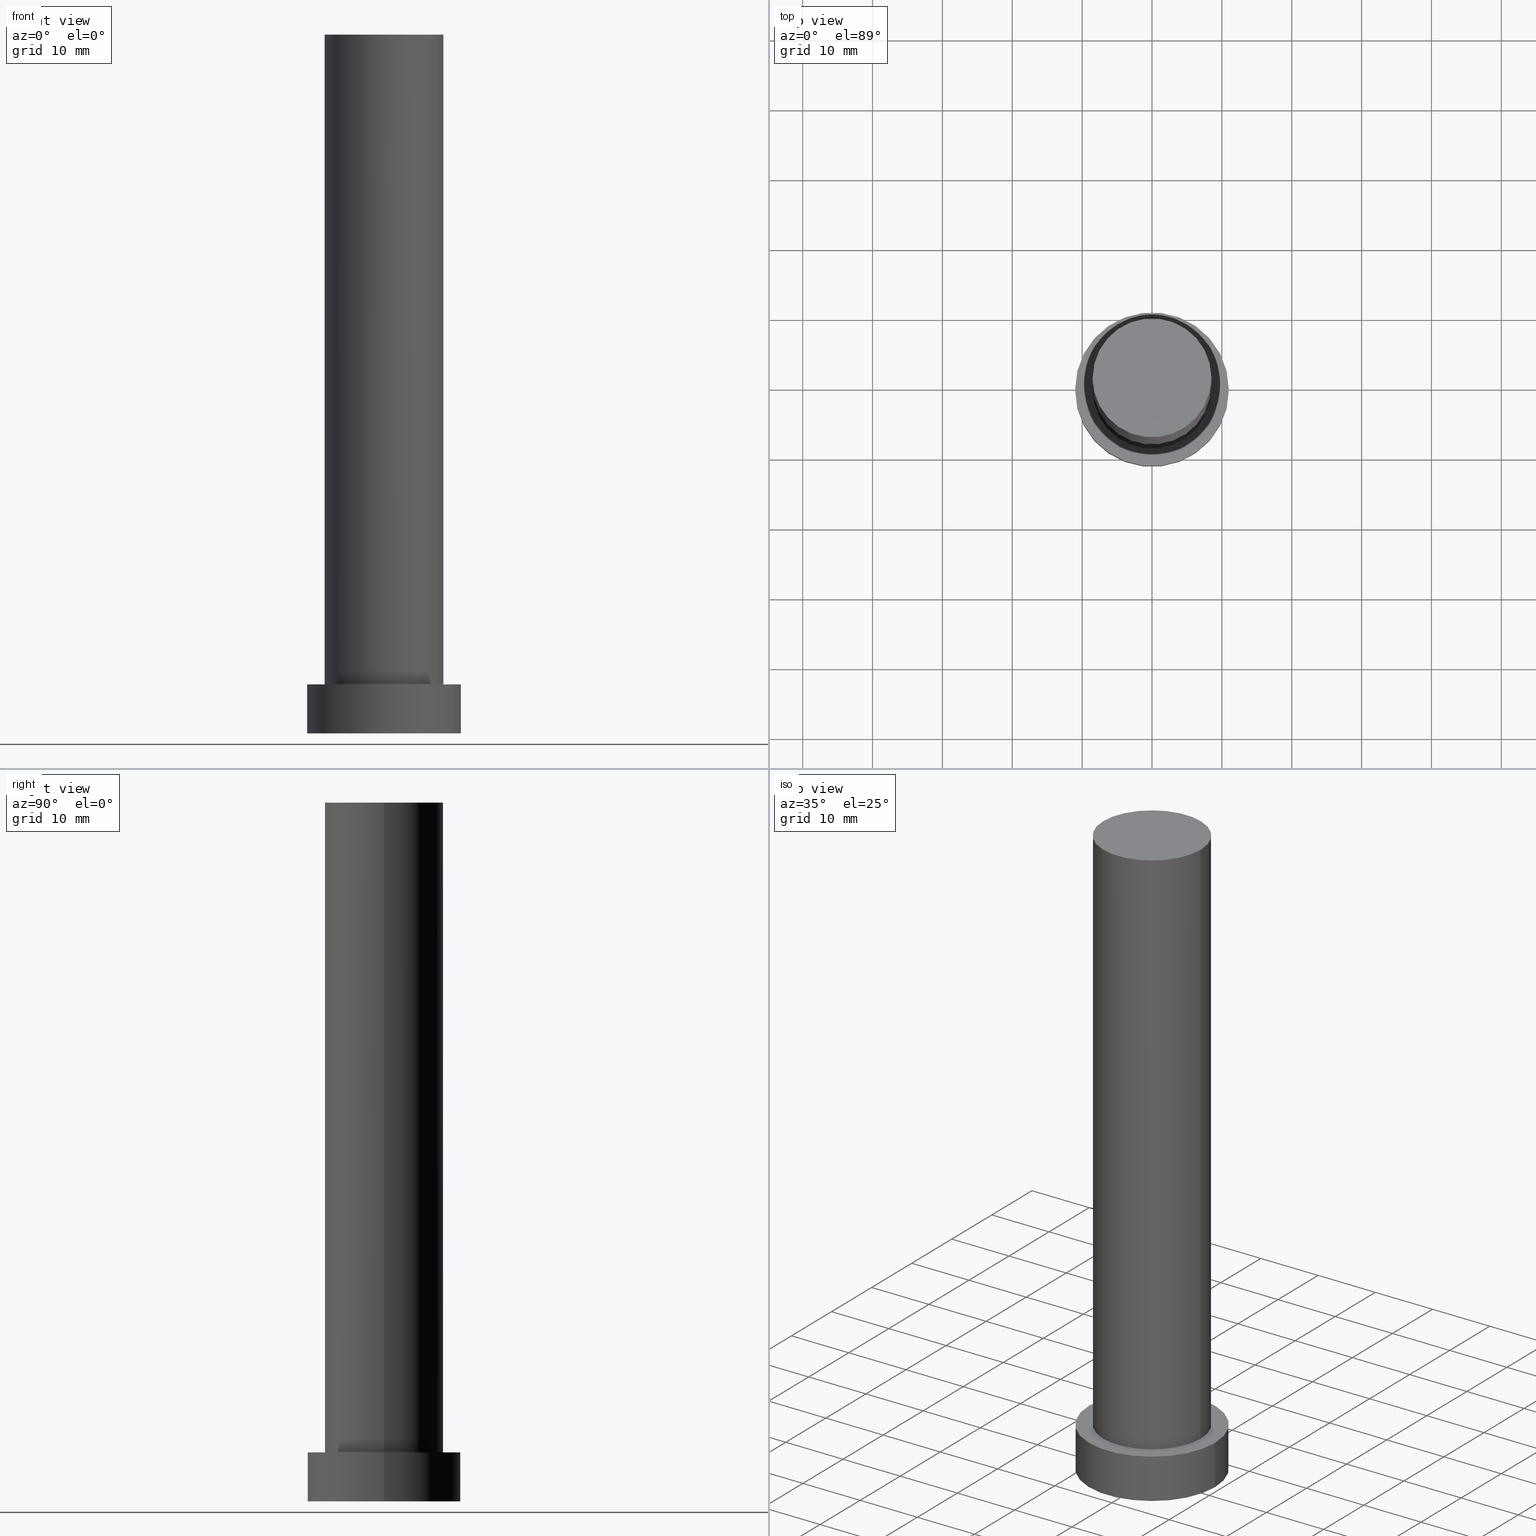
[diagram: canonical four-view strip — front | top / right | iso, engineering-drawing reading convention]
A machine part, canonical four-view strip (front | top / right | iso — engineering-drawing reading convention). The complete STEP part file that produces these views, byte-faithful:
ISO-10303-21;
HEADER;
FILE_DESCRIPTION (( 'STEP AP203' ),
    '1' );
FILE_NAME ('7f58.STEP',
    '2023-02-13T08:47:41',
    ( '' ),
    ( '' ),
    'SwSTEP 2.0',
    'SolidWorks 2019',
    '' );
FILE_SCHEMA (( 'CONFIG_CONTROL_DESIGN' ));
ENDSEC;

DATA;
#1 = DATE_AND_TIME ( #3, #213 ) ;
#2 = VERTEX_POINT ( 'NONE', #150 ) ;
#3 = CALENDAR_DATE ( 2023, 13, 2 ) ;
#4 = CARTESIAN_POINT ( 'NONE',  ( 0.000000000000000000, 0.000000000000000000, 100.0000000000000000 ) ) ;
#5 = EDGE_CURVE ( 'NONE', #6, #231, #13, .T. ) ;
#6 = VERTEX_POINT ( 'NONE', #211 ) ;
#7 = CC_DESIGN_PERSON_AND_ORGANIZATION_ASSIGNMENT ( #98, #220, ( #14 ) ) ;
#8 = CARTESIAN_POINT ( 'NONE',  ( 0.000000000000000000, 0.000000000000000000, 7.000000000000000000 ) ) ;
#9 = DIRECTION ( 'NONE',  ( -1.000000000000000000, 0.000000000000000000, 0.000000000000000000 ) ) ;
#10 = ORIENTED_EDGE ( 'NONE', *, *, #53, .F. ) ;
#11 = ORIENTED_EDGE ( 'NONE', *, *, #123, .T. ) ;
#12 = ADVANCED_FACE ( 'NONE', ( #31, #114 ), #15, .T. ) ;
#13 = CIRCLE ( 'NONE', #138, 11.00000000000000000 ) ;
#14 = PRODUCT_DEFINITION_FORMATION_WITH_SPECIFIED_SOURCE ( 'LIBOVOLN�', '', #29, .NOT_KNOWN. ) ;
#15 = PLANE ( 'NONE',  #183 ) ;
#16 = CARTESIAN_POINT ( 'NONE',  ( 0.000000000000000000, 0.000000000000000000, 100.0000000000000000 ) ) ;
#17 = PERSON_AND_ORGANIZATION ( #60, #49 ) ;
#18 = CARTESIAN_POINT ( 'NONE',  ( 0.000000000000000000, 0.000000000000000000, 100.0000000000000000 ) ) ;
#19 = APPLICATION_CONTEXT ( 'configuration controlled 3d designs of mechanical parts and assemblies' ) ;
#20 = CIRCLE ( 'NONE', #78, 11.00000000000000000 ) ;
#21 = DATE_AND_TIME ( #195, #63 ) ;
#22 = PERSON_AND_ORGANIZATION ( #60, #49 ) ;
#23 = CLOSED_SHELL ( 'NONE', ( #117, #239, #77, #12, #177, #58, #103 ) ) ;
#24 = DIRECTION ( 'NONE',  ( 1.000000000000000000, 0.000000000000000000, 0.000000000000000000 ) ) ;
#25 = CARTESIAN_POINT ( 'NONE',  ( 0.000000000000000000, 0.000000000000000000, 7.000000000000000000 ) ) ;
#26 = DIRECTION ( 'NONE',  ( 1.000000000000000000, 0.000000000000000000, 0.000000000000000000 ) ) ;
#27 = EDGE_CURVE ( 'NONE', #231, #2, #243, .T. ) ;
#28 = DIRECTION ( 'NONE',  ( 1.000000000000000000, 0.000000000000000000, -0.000000000000000000 ) ) ;
#29 = PRODUCT ( '7f58', '7f58', '', ( #157 ) ) ;
#30 = DIRECTION ( 'NONE',  ( 1.000000000000000000, 0.000000000000000000, 0.000000000000000000 ) ) ;
#31 = FACE_BOUND ( 'NONE', #89, .T. ) ;
#32 = DIRECTION ( 'NONE',  ( -0.000000000000000000, -0.000000000000000000, -1.000000000000000000 ) ) ;
#33 = APPROVAL_PERSON_ORGANIZATION ( #154, #227, #214 ) ;
#34 = CC_DESIGN_PERSON_AND_ORGANIZATION_ASSIGNMENT ( #179, #141, ( #14 ) ) ;
#35 = DIRECTION ( 'NONE',  ( -0.000000000000000000, -0.000000000000000000, -1.000000000000000000 ) ) ;
#36 = COORDINATED_UNIVERSAL_TIME_OFFSET ( 1, 0, .AHEAD. ) ;
#37 = AXIS2_PLACEMENT_3D ( 'NONE', #230, #168, #9 ) ;
#38 = SECURITY_CLASSIFICATION_LEVEL ( 'unclassified' ) ;
#39 = SECURITY_CLASSIFICATION ( '', '', #38 ) ;
#40 = CIRCLE ( 'NONE', #80, 11.00000000000000000 ) ;
#41 = PERSON_AND_ORGANIZATION_ROLE ( 'classification_officer' ) ;
#42 = CC_DESIGN_DATE_AND_TIME_ASSIGNMENT ( #136, #122, ( #43 ) ) ;
#43 = PRODUCT_DEFINITION ( 'NEZN�M�', '', #14, #109 ) ;
#44 = ORIENTED_EDGE ( 'NONE', *, *, #45, .T. ) ;
#45 = EDGE_CURVE ( 'NONE', #181, #132, #252, .T. ) ;
#46 = DIRECTION ( 'NONE',  ( 1.000000000000000000, 0.000000000000000000, 0.000000000000000000 ) ) ;
#47 = ORIENTED_EDGE ( 'NONE', *, *, #82, .F. ) ;
#48 = ORIENTED_EDGE ( 'NONE', *, *, #82, .T. ) ;
#49 = ORGANIZATION ( 'NEUR�EN�', 'NEUR�EN�', '' ) ;
#50 = DIRECTION ( 'NONE',  ( -1.000000000000000000, 0.000000000000000000, 0.000000000000000000 ) ) ;
#51 = CARTESIAN_POINT ( 'NONE',  ( 0.000000000000000000, 0.000000000000000000, 7.000000000000000000 ) ) ;
#52 = CARTESIAN_POINT ( 'NONE',  ( -8.500000000000000000, 0.000000000000000000, 100.0000000000000000 ) ) ;
#53 = EDGE_CURVE ( 'NONE', #6, #128, #235, .T. ) ;
#54 = CALENDAR_DATE ( 2023, 13, 2 ) ;
#55 = CARTESIAN_POINT ( 'NONE',  ( 0.000000000000000000, 0.000000000000000000, 0.000000000000000000 ) ) ;
#56 = EDGE_CURVE ( 'NONE', #2, #128, #40, .T. ) ;
#57 =( LENGTH_UNIT ( ) NAMED_UNIT ( * ) SI_UNIT ( .MILLI., .METRE. ) );
#58 = ADVANCED_FACE ( 'NONE', ( #173 ), #76, .T. ) ;
#59 = APPROVAL_PERSON_ORGANIZATION ( #237, #71, #191 ) ;
#60 = PERSON ( 'NEUR�EN�', 'NEUR�EN�', 'NEUR�EN�', ('NEUR�EN�'), ('NEUR�EN�'), ('NEUR�EN�') ) ;
#61 = ADVANCED_BREP_SHAPE_REPRESENTATION ( '7f58', ( #143, #199 ), #188 ) ;
#62 = DIRECTION ( 'NONE',  ( 1.000000000000000000, 0.000000000000000000, 0.000000000000000000 ) ) ;
#63 = LOCAL_TIME ( 9, 47, 41.00000000000000000, #119 ) ;
#64 = DIRECTION ( 'NONE',  ( 1.000000000000000000, 0.000000000000000000, -0.000000000000000000 ) ) ;
#65 = CARTESIAN_POINT ( 'NONE',  ( 0.000000000000000000, 0.000000000000000000, 7.000000000000000000 ) ) ;
#66 = DIRECTION ( 'NONE',  ( -0.000000000000000000, -0.000000000000000000, -1.000000000000000000 ) ) ;
#67 = EDGE_LOOP ( 'NONE', ( #147, #87, #206, #48 ) ) ;
#68 = DIRECTION ( 'NONE',  ( -0.000000000000000000, -0.000000000000000000, -1.000000000000000000 ) ) ;
#69 = EDGE_LOOP ( 'NONE', ( #224, #192, #129, #244 ) ) ;
#70 = AXIS2_PLACEMENT_3D ( 'NONE', #225, #245, #46 ) ;
#71 = APPROVAL ( #197, 'NEUR�EN�' ) ;
#72 = AXIS2_PLACEMENT_3D ( 'NONE', #175, #32, #95 ) ;
#73 = EDGE_LOOP ( 'NONE', ( #229, #11 ) ) ;
#74 = APPROVAL_STATUS ( 'not_yet_approved' ) ;
#75 = DATE_AND_TIME ( #156, #184 ) ;
#76 = CYLINDRICAL_SURFACE ( 'NONE', #193, 8.500000000000000000 ) ;
#77 = ADVANCED_FACE ( 'NONE', ( #170 ), #146, .T. ) ;
#78 = AXIS2_PLACEMENT_3D ( 'NONE', #88, #203, #24 ) ;
#79 = CARTESIAN_POINT ( 'NONE',  ( 8.500000000000000000, 1.040949779275249943E-15, 100.0000000000000000 ) ) ;
#80 = AXIS2_PLACEMENT_3D ( 'NONE', #140, #198, #94 ) ;
#81 = DATE_TIME_ROLE ( 'classification_date' ) ;
#82 = EDGE_CURVE ( 'NONE', #128, #2, #222, .T. ) ;
#83 = DIRECTION ( 'NONE',  ( -1.000000000000000000, 0.000000000000000000, 0.000000000000000000 ) ) ;
#84 = PLANE ( 'NONE',  #218 ) ;
#85 = EDGE_LOOP ( 'NONE', ( #171, #44, #249, #226 ) ) ;
#86 = AXIS2_PLACEMENT_3D ( 'NONE', #8, #68, #50 ) ;
#87 = ORIENTED_EDGE ( 'NONE', *, *, #5, .F. ) ;
#88 = CARTESIAN_POINT ( 'NONE',  ( 0.000000000000000000, 0.000000000000000000, 7.000000000000000000 ) ) ;
#89 = EDGE_LOOP ( 'NONE', ( #111, #210 ) ) ;
#90 = CC_DESIGN_PERSON_AND_ORGANIZATION_ASSIGNMENT ( #17, #93, ( #29 ) ) ;
#91 = AXIS2_PLACEMENT_3D ( 'NONE', #4, #204, #62 ) ;
#92 = DIRECTION ( 'NONE',  ( 1.000000000000000000, 0.000000000000000000, 0.000000000000000000 ) ) ;
#93 = PERSON_AND_ORGANIZATION_ROLE ( 'design_owner' ) ;
#94 = DIRECTION ( 'NONE',  ( 1.000000000000000000, 0.000000000000000000, 0.000000000000000000 ) ) ;
#95 = DIRECTION ( 'NONE',  ( -1.000000000000000000, 0.000000000000000000, 0.000000000000000000 ) ) ;
#96 = CARTESIAN_POINT ( 'NONE',  ( 11.00000000000000000, 1.347111479062088405E-15, 7.000000000000000000 ) ) ;
#97 = APPROVAL_DATE_TIME ( #75, #71 ) ;
#98 = PERSON_AND_ORGANIZATION ( #60, #49 ) ;
#99 = CIRCLE ( 'NONE', #116, 8.500000000000000000 ) ;
#100 = CC_DESIGN_APPROVAL ( #131, ( #39 ) ) ;
#101 = PERSON_AND_ORGANIZATION ( #60, #49 ) ;
#102 = APPROVAL_ROLE ( '' ) ;
#103 = ADVANCED_FACE ( 'NONE', ( #189 ), #207, .T. ) ;
#104 = CALENDAR_DATE ( 2023, 13, 2 ) ;
#105 = LOCAL_TIME ( 9, 47, 41.00000000000000000, #36 ) ;
#106 = CARTESIAN_POINT ( 'NONE',  ( -11.00000000000000000, 0.000000000000000000, 0.000000000000000000 ) ) ;
#107 = DIRECTION ( 'NONE',  ( 1.000000000000000000, 0.000000000000000000, 0.000000000000000000 ) ) ;
#108 = DIRECTION ( 'NONE',  ( 1.000000000000000000, 0.000000000000000000, -0.000000000000000000 ) ) ;
#109 = DESIGN_CONTEXT ( 'detailed design', #161, 'design' ) ;
#110 = CC_DESIGN_DATE_AND_TIME_ASSIGNMENT ( #1, #81, ( #39 ) ) ;
#111 = ORIENTED_EDGE ( 'NONE', *, *, #159, .F. ) ;
#112 = FACE_OUTER_BOUND ( 'NONE', #85, .T. ) ;
#113 = ORIENTED_EDGE ( 'NONE', *, *, #56, .F. ) ;
#114 = FACE_OUTER_BOUND ( 'NONE', #73, .T. ) ;
#115 = EDGE_CURVE ( 'NONE', #132, #241, #99, .T. ) ;
#116 = AXIS2_PLACEMENT_3D ( 'NONE', #223, #162, #149 ) ;
#117 = ADVANCED_FACE ( 'NONE', ( #112 ), #247, .T. ) ;
#118 = FACE_OUTER_BOUND ( 'NONE', #202, .T. ) ;
#119 = COORDINATED_UNIVERSAL_TIME_OFFSET ( 1, 0, .AHEAD. ) ;
#120 = DIRECTION ( 'NONE',  ( -0.000000000000000000, -0.000000000000000000, -1.000000000000000000 ) ) ;
#121 = AXIS2_PLACEMENT_3D ( 'NONE', #25, #126, #107 ) ;
#122 = DATE_TIME_ROLE ( 'creation_date' ) ;
#123 = EDGE_CURVE ( 'NONE', #231, #6, #20, .T. ) ;
#124 = CIRCLE ( 'NONE', #91, 8.500000000000000000 ) ;
#125 = PRODUCT_DEFINITION_SHAPE ( 'NONE', 'NONE',  #43 ) ;
#126 = DIRECTION ( 'NONE',  ( 0.000000000000000000, 0.000000000000000000, 1.000000000000000000 ) ) ;
#127 = DIRECTION ( 'NONE',  ( 0.000000000000000000, 0.000000000000000000, 1.000000000000000000 ) ) ;
#128 = VERTEX_POINT ( 'NONE', #106 ) ;
#129 = ORIENTED_EDGE ( 'NONE', *, *, #200, .T. ) ;
#130 = VECTOR ( 'NONE', #196, 1000.000000000000000 ) ;
#131 = APPROVAL ( #160, 'NEUR�EN�' ) ;
#132 = VERTEX_POINT ( 'NONE', #185 ) ;
#133 = DIRECTION ( 'NONE',  ( 0.000000000000000000, 0.000000000000000000, 1.000000000000000000 ) ) ;
#134 =( NAMED_UNIT ( * ) PLANE_ANGLE_UNIT ( ) SI_UNIT ( $, .RADIAN. ) );
#135 = CARTESIAN_POINT ( 'NONE',  ( -11.00000000000000000, 0.000000000000000000, 7.000000000000000000 ) ) ;
#136 = DATE_AND_TIME ( #54, #105 ) ;
#137 = APPLICATION_PROTOCOL_DEFINITION ( 'international standard', 'config_control_design', 1994, #19 ) ;
#138 = AXIS2_PLACEMENT_3D ( 'NONE', #51, #133, #26 ) ;
#139 = APPROVAL_PERSON_ORGANIZATION ( #22, #131, #102 ) ;
#140 = CARTESIAN_POINT ( 'NONE',  ( 0.000000000000000000, 0.000000000000000000, 0.000000000000000000 ) ) ;
#141 = PERSON_AND_ORGANIZATION_ROLE ( 'creator' ) ;
#142 = APPROVAL_DATE_TIME ( #21, #227 ) ;
#143 = MANIFOLD_SOLID_BREP ( 'P�idat vysunut�m3', #23 ) ;
#144 = EDGE_LOOP ( 'NONE', ( #187, #190 ) ) ;
#145 = CARTESIAN_POINT ( 'NONE',  ( 11.00000000000000000, 1.347111479062088405E-15, 7.000000000000000000 ) ) ;
#146 = CYLINDRICAL_SURFACE ( 'NONE', #86, 11.00000000000000000 ) ;
#147 = ORIENTED_EDGE ( 'NONE', *, *, #27, .F. ) ;
#148 = VECTOR ( 'NONE', #176, 1000.000000000000000 ) ;
#149 = DIRECTION ( 'NONE',  ( 1.000000000000000000, 0.000000000000000000, 0.000000000000000000 ) ) ;
#150 = CARTESIAN_POINT ( 'NONE',  ( 11.00000000000000000, 1.347111479062088405E-15, 0.000000000000000000 ) ) ;
#151 = EDGE_CURVE ( 'NONE', #181, #205, #124, .T. ) ;
#152 = CC_DESIGN_PERSON_AND_ORGANIZATION_ASSIGNMENT ( #216, #250, ( #43 ) ) ;
#153 = AXIS2_PLACEMENT_3D ( 'NONE', #16, #234, #30 ) ;
#154 = PERSON_AND_ORGANIZATION ( #60, #49 ) ;
#155 = CC_DESIGN_PERSON_AND_ORGANIZATION_ASSIGNMENT ( #101, #41, ( #39 ) ) ;
#156 = CALENDAR_DATE ( 2023, 13, 2 ) ;
#157 = MECHANICAL_CONTEXT ( 'NONE', #19, 'mechanical' ) ;
#158 = CC_DESIGN_SECURITY_CLASSIFICATION ( #39, ( #14 ) ) ;
#159 = EDGE_CURVE ( 'NONE', #241, #132, #166, .T. ) ;
#160 = APPROVAL_STATUS ( 'not_yet_approved' ) ;
#161 = APPLICATION_CONTEXT ( 'configuration controlled 3d designs of mechanical parts and assemblies' ) ;
#162 = DIRECTION ( 'NONE',  ( 0.000000000000000000, 0.000000000000000000, 1.000000000000000000 ) ) ;
#163 = ORIENTED_EDGE ( 'NONE', *, *, #27, .T. ) ;
#164 = CARTESIAN_POINT ( 'NONE',  ( 0.000000000000000000, 0.000000000000000000, 0.000000000000000000 ) ) ;
#165 = VECTOR ( 'NONE', #120, 1000.000000000000000 ) ;
#166 = CIRCLE ( 'NONE', #121, 8.500000000000000000 ) ;
#167 = CARTESIAN_POINT ( 'NONE',  ( 0.000000000000000000, 0.000000000000000000, 100.0000000000000000 ) ) ;
#168 = DIRECTION ( 'NONE',  ( -0.000000000000000000, -0.000000000000000000, -1.000000000000000000 ) ) ;
#169 = EDGE_LOOP ( 'NONE', ( #47, #113 ) ) ;
#170 = FACE_OUTER_BOUND ( 'NONE', #67, .T. ) ;
#171 = ORIENTED_EDGE ( 'NONE', *, *, #151, .F. ) ;
#172 = APPLICATION_PROTOCOL_DEFINITION ( 'international standard', 'config_control_design', 1994, #161 ) ;
#173 = FACE_OUTER_BOUND ( 'NONE', #69, .T. ) ;
#174 = DIRECTION ( 'NONE',  ( 0.000000000000000000, 0.000000000000000000, 1.000000000000000000 ) ) ;
#175 = CARTESIAN_POINT ( 'NONE',  ( 0.000000000000000000, 0.000000000000000000, 7.000000000000000000 ) ) ;
#176 = DIRECTION ( 'NONE',  ( -0.000000000000000000, -0.000000000000000000, -1.000000000000000000 ) ) ;
#177 = ADVANCED_FACE ( 'NONE', ( #186 ), #84, .F. ) ;
#178 = CC_DESIGN_APPROVAL ( #71, ( #43 ) ) ;
#179 = PERSON_AND_ORGANIZATION ( #60, #49 ) ;
#180 = COORDINATED_UNIVERSAL_TIME_OFFSET ( 1, 0, .AHEAD. ) ;
#181 = VERTEX_POINT ( 'NONE', #79 ) ;
#182 = APPROVAL_DATE_TIME ( #201, #131 ) ;
#183 = AXIS2_PLACEMENT_3D ( 'NONE', #65, #127, #108 ) ;
#184 = LOCAL_TIME ( 9, 47, 41.00000000000000000, #212 ) ;
#185 = CARTESIAN_POINT ( 'NONE',  ( 8.500000000000000000, 1.040949779275249943E-15, 7.000000000000000000 ) ) ;
#186 = FACE_OUTER_BOUND ( 'NONE', #169, .T. ) ;
#187 = ORIENTED_EDGE ( 'NONE', *, *, #251, .T. ) ;
#188 =( GEOMETRIC_REPRESENTATION_CONTEXT ( 3 ) GLOBAL_UNCERTAINTY_ASSIGNED_CONTEXT ( ( #253 ) ) GLOBAL_UNIT_ASSIGNED_CONTEXT ( ( #57, #134, #233 ) ) REPRESENTATION_CONTEXT ( 'NONE', 'WORKASPACE' ) );
#189 = FACE_OUTER_BOUND ( 'NONE', #144, .T. ) ;
#190 = ORIENTED_EDGE ( 'NONE', *, *, #151, .T. ) ;
#191 = APPROVAL_ROLE ( '' ) ;
#192 = ORIENTED_EDGE ( 'NONE', *, *, #251, .F. ) ;
#193 = AXIS2_PLACEMENT_3D ( 'NONE', #18, #66, #83 ) ;
#194 = CYLINDRICAL_SURFACE ( 'NONE', #72, 11.00000000000000000 ) ;
#195 = CALENDAR_DATE ( 2023, 13, 2 ) ;
#196 = DIRECTION ( 'NONE',  ( -0.000000000000000000, -0.000000000000000000, -1.000000000000000000 ) ) ;
#197 = APPROVAL_STATUS ( 'not_yet_approved' ) ;
#198 = DIRECTION ( 'NONE',  ( 0.000000000000000000, 0.000000000000000000, 1.000000000000000000 ) ) ;
#199 = AXIS2_PLACEMENT_3D ( 'NONE', #55, #174, #92 ) ;
#200 = EDGE_CURVE ( 'NONE', #205, #241, #215, .T. ) ;
#201 = DATE_AND_TIME ( #104, #248 ) ;
#202 = EDGE_LOOP ( 'NONE', ( #246, #163, #208, #10 ) ) ;
#203 = DIRECTION ( 'NONE',  ( 0.000000000000000000, 0.000000000000000000, 1.000000000000000000 ) ) ;
#204 = DIRECTION ( 'NONE',  ( 0.000000000000000000, 0.000000000000000000, 1.000000000000000000 ) ) ;
#205 = VERTEX_POINT ( 'NONE', #52 ) ;
#206 = ORIENTED_EDGE ( 'NONE', *, *, #53, .T. ) ;
#207 = PLANE ( 'NONE',  #217 ) ;
#208 = ORIENTED_EDGE ( 'NONE', *, *, #56, .T. ) ;
#209 = DIRECTION ( 'NONE',  ( 0.000000000000000000, 0.000000000000000000, 1.000000000000000000 ) ) ;
#210 = ORIENTED_EDGE ( 'NONE', *, *, #115, .F. ) ;
#211 = CARTESIAN_POINT ( 'NONE',  ( -11.00000000000000000, 0.000000000000000000, 7.000000000000000000 ) ) ;
#212 = COORDINATED_UNIVERSAL_TIME_OFFSET ( 1, 0, .AHEAD. ) ;
#213 = LOCAL_TIME ( 9, 47, 41.00000000000000000, #240 ) ;
#214 = APPROVAL_ROLE ( '' ) ;
#215 = LINE ( 'NONE', #254, #228 ) ;
#216 = PERSON_AND_ORGANIZATION ( #60, #49 ) ;
#217 = AXIS2_PLACEMENT_3D ( 'NONE', #167, #209, #28 ) ;
#218 = AXIS2_PLACEMENT_3D ( 'NONE', #164, #242, #64 ) ;
#219 = SHAPE_DEFINITION_REPRESENTATION ( #125, #61 ) ;
#220 = PERSON_AND_ORGANIZATION_ROLE ( 'design_supplier' ) ;
#221 = PRODUCT_RELATED_PRODUCT_CATEGORY ( 'detail', '', ( #29 ) ) ;
#222 = CIRCLE ( 'NONE', #70, 11.00000000000000000 ) ;
#223 = CARTESIAN_POINT ( 'NONE',  ( 0.000000000000000000, 0.000000000000000000, 7.000000000000000000 ) ) ;
#224 = ORIENTED_EDGE ( 'NONE', *, *, #45, .F. ) ;
#225 = CARTESIAN_POINT ( 'NONE',  ( 0.000000000000000000, 0.000000000000000000, 0.000000000000000000 ) ) ;
#226 = ORIENTED_EDGE ( 'NONE', *, *, #200, .F. ) ;
#227 = APPROVAL ( #74, 'NEUR�EN�' ) ;
#228 = VECTOR ( 'NONE', #35, 1000.000000000000000 ) ;
#229 = ORIENTED_EDGE ( 'NONE', *, *, #5, .T. ) ;
#230 = CARTESIAN_POINT ( 'NONE',  ( 0.000000000000000000, 0.000000000000000000, 100.0000000000000000 ) ) ;
#231 = VERTEX_POINT ( 'NONE', #96 ) ;
#232 = CARTESIAN_POINT ( 'NONE',  ( 8.500000000000000000, 1.040949779275249943E-15, 100.0000000000000000 ) ) ;
#233 =( NAMED_UNIT ( * ) SI_UNIT ( $, .STERADIAN. ) SOLID_ANGLE_UNIT ( ) );
#234 = DIRECTION ( 'NONE',  ( 0.000000000000000000, 0.000000000000000000, 1.000000000000000000 ) ) ;
#235 = LINE ( 'NONE', #135, #148 ) ;
#236 = CARTESIAN_POINT ( 'NONE',  ( -8.500000000000000000, 0.000000000000000000, 7.000000000000000000 ) ) ;
#237 = PERSON_AND_ORGANIZATION ( #60, #49 ) ;
#238 = CC_DESIGN_APPROVAL ( #227, ( #14 ) ) ;
#239 = ADVANCED_FACE ( 'NONE', ( #118 ), #194, .T. ) ;
#240 = COORDINATED_UNIVERSAL_TIME_OFFSET ( 1, 0, .AHEAD. ) ;
#241 = VERTEX_POINT ( 'NONE', #236 ) ;
#242 = DIRECTION ( 'NONE',  ( 0.000000000000000000, 0.000000000000000000, 1.000000000000000000 ) ) ;
#243 = LINE ( 'NONE', #145, #165 ) ;
#244 = ORIENTED_EDGE ( 'NONE', *, *, #159, .T. ) ;
#245 = DIRECTION ( 'NONE',  ( 0.000000000000000000, 0.000000000000000000, 1.000000000000000000 ) ) ;
#246 = ORIENTED_EDGE ( 'NONE', *, *, #123, .F. ) ;
#247 = CYLINDRICAL_SURFACE ( 'NONE', #37, 8.500000000000000000 ) ;
#248 = LOCAL_TIME ( 9, 47, 41.00000000000000000, #180 ) ;
#249 = ORIENTED_EDGE ( 'NONE', *, *, #115, .T. ) ;
#250 = PERSON_AND_ORGANIZATION_ROLE ( 'creator' ) ;
#251 = EDGE_CURVE ( 'NONE', #205, #181, #255, .T. ) ;
#252 = LINE ( 'NONE', #232, #130 ) ;
#253 = UNCERTAINTY_MEASURE_WITH_UNIT (LENGTH_MEASURE( 1.000000000000000082E-05 ), #57, 'distance_accuracy_value', 'NONE');
#254 = CARTESIAN_POINT ( 'NONE',  ( -8.500000000000000000, 0.000000000000000000, 100.0000000000000000 ) ) ;
#255 = CIRCLE ( 'NONE', #153, 8.500000000000000000 ) ;
ENDSEC;
END-ISO-10303-21;
